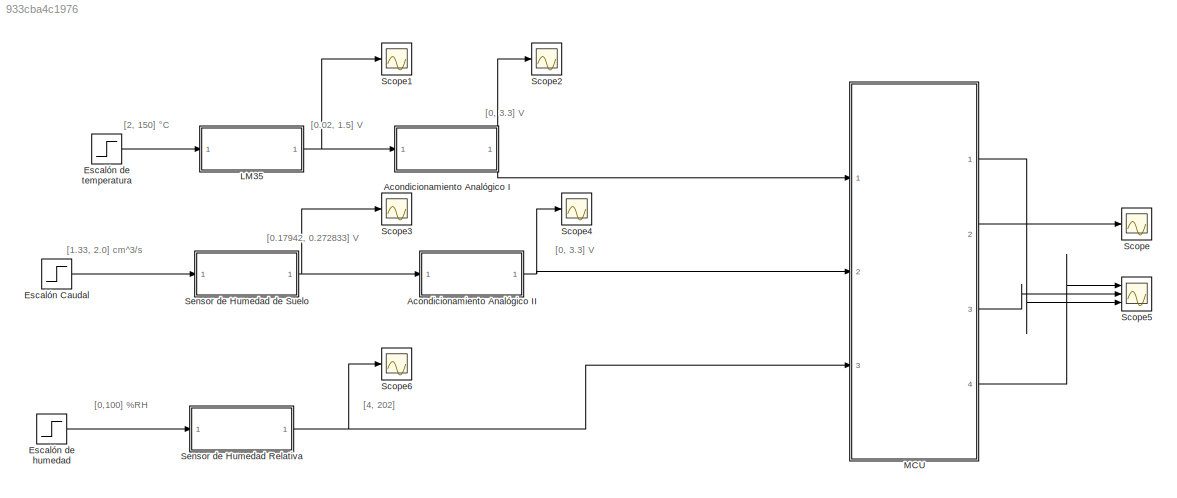
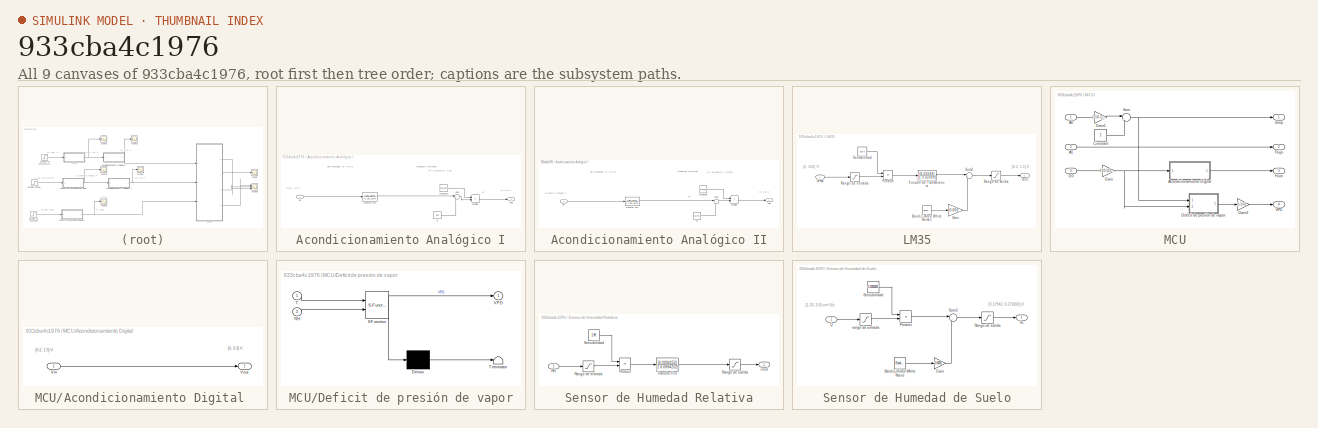
[diagram: thumbnail index - all 9 canvases of the model, root first then tree order]
MODEL slx_933cba4c1976
KIND model
CONFIG AbsTol = auto
CONFIG EnableMultiTasking = off
CONFIG FixedStep = 1e-3
CONFIG MaxStep = auto
CONFIG MinStep = auto
CONFIG RelTol = 1e-3
CONFIG SampleTimeConstraint = Unconstrained
CONFIG Solver = VariableStepAuto
CONFIG SolverName = VariableStepAuto
CONFIG StartTime = 0.0
CONFIG StopTime = 480
BLOCK [SubSystem] Acondicionamiento Analógico I
  Description = Temperature Sensor
  Ports = [1, 1]
  RequestExecContextInheritance = off
  Tag = LM35
BLOCK [Constant] Acondicionamiento Analógico I/Ganancia 
  Value = 2.22972973
BLOCK [Product] Acondicionamiento Analógico I/Multiply
  InputSameDT = off
  OutDataTypeStr = Inherit: Inherit via internal rule
  Ports = [2, 1]
  RndMeth = Floor
  SaturateOnIntegerOverflow = off
BLOCK [Sum] Acondicionamiento Analógico I/Sum
  IconShape = round
  InputSameDT = off
  Inputs = |+-
  OutDataTypeStr = Inherit: Inherit via internal rule
  Ports = [2, 1]
  SaturateOnIntegerOverflow = off
BLOCK [TransferFcn] Acondicionamiento Analógico I/Transfer Fcn
  Denominator = [1 251.3274]
  Numerator = [251.3274]
BLOCK [Constant] Acondicionamiento Analógico I/V1
  Value = 0.02
BLOCK [Inport] Acondicionamiento Analógico I/Vin 
  IconDisplay = Port number
BLOCK [Outport] Acondicionamiento Analógico I/Vout 
  IconDisplay = Port number
BLOCK [SubSystem] Acondicionamiento Analógico II
  Description = Temperature Sensor
  Ports = [1, 1]
  RequestExecContextInheritance = off
  Tag = LM35
BLOCK [Constant] Acondicionamiento Analógico II/Ganancia 
  Value = 33.36366
BLOCK [Product] Acondicionamiento Analógico II/Multiply
  InputSameDT = off
  OutDataTypeStr = Inherit: Inherit via internal rule
  Ports = [2, 1]
  RndMeth = Floor
  SaturateOnIntegerOverflow = off
BLOCK [Sum] Acondicionamiento Analógico II/Sum
  IconShape = round
  InputSameDT = off
  Inputs = |+-
  OutDataTypeStr = Inherit: Inherit via internal rule
  Ports = [2, 1]
  SaturateOnIntegerOverflow = off
BLOCK [TransferFcn] Acondicionamiento Analógico II/Transfer Fcn
  Denominator = [1 251.3274]
  Numerator = [251.3274]
BLOCK [Constant] Acondicionamiento Analógico II/V1
  Value = 0.17942
BLOCK [Inport] Acondicionamiento Analógico II/Vin 
  IconDisplay = Port number
BLOCK [Outport] Acondicionamiento Analógico II/Vout 
  IconDisplay = Port number
BLOCK [Step] Escalón Caudal
  After = 2.0
  SampleTime = 0
BLOCK [Step] Escalón de humedad 
  After = 70
  SampleTime = 0
BLOCK [Step] Escalón de temperatura
  After = 25
  Before = 2
  SampleTime = 0
BLOCK [SubSystem] LM35
  Description = Temperature Sensor
  Ports = [1, 1]
  RequestExecContextInheritance = off
  Tag = LM35
BLOCK [Reference] LM35/Band-Limited White Noise1  REF=simulink/Sources/Band-Limited
White Noise
  Ports = [0, 1]
  SourceBlock = simulink/Sources/Band-Limited\nWhite Noise
  SourceProductBaseCode = SL
  SourceProductName = Simulink
  SourceType = Band-Limited White Noise.
BLOCK [TransferFcn] LM35/Función de Transferencia
  Denominator = [1 0.02049]
  Numerator = [0.02049]
BLOCK [Gain] LM35/Gain
  Gain = 0.001
  OutDataTypeStr = Inherit: Inherit via internal rule
  ParamDataTypeStr = Inherit: Inherit via internal rule
  SaturateOnIntegerOverflow = off
BLOCK [Product] LM35/Product
  InputSameDT = off
  OutDataTypeStr = Inherit: Inherit via internal rule
  Ports = [2, 1]
  RndMeth = Floor
  SaturateOnIntegerOverflow = off
BLOCK [Saturate] LM35/Rango de entrada
  InputPortMap = u0
  LowerLimit = 2
  Ports = [1, 1]
  UpperLimit = 150
BLOCK [Saturate] LM35/Rango de salida
  InputPortMap = u0
  LowerLimit = 0.2
  Ports = [1, 1]
  UpperLimit = 1.5
BLOCK [Constant] LM35/Sensibilidad
  Value = 10e-3
BLOCK [Sum] LM35/Sum2
  IconShape = round
  InputSameDT = off
  Inputs = |++
  OutDataTypeStr = Inherit: Inherit via internal rule
  Ports = [2, 1]
  SaturateOnIntegerOverflow = off
BLOCK [Inport] LM35/temp 
  IconDisplay = Port number
BLOCK [Outport] LM35/vout 
  IconDisplay = Port number
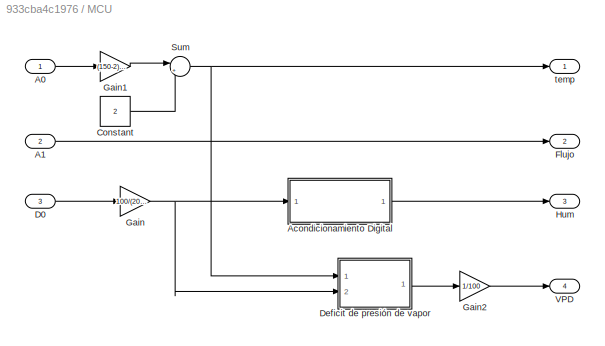
BLOCK [SubSystem] MCU
  Description = Temperature Sensor
  Ports = [3, 4]
  RequestExecContextInheritance = off
  Tag = LM35
BLOCK [Inport] MCU/A0 
  IconDisplay = Port number
BLOCK [Inport] MCU/A1 
  IconDisplay = Port number
  Port = 2
BLOCK [SubSystem] MCU/Acondicionamiento Digital 
  Description = Temperature Sensor
  Ports = [1, 1]
  RequestExecContextInheritance = off
  Tag = LM35
BLOCK [Inport] MCU/Acondicionamiento Digital /Vin 
  IconDisplay = Port number
BLOCK [Outport] MCU/Acondicionamiento Digital /Vout 
  IconDisplay = Port number
BLOCK [Constant] MCU/Constant
  Value = 2
BLOCK [Inport] MCU/D0 
  IconDisplay = Port number
  Port = 3
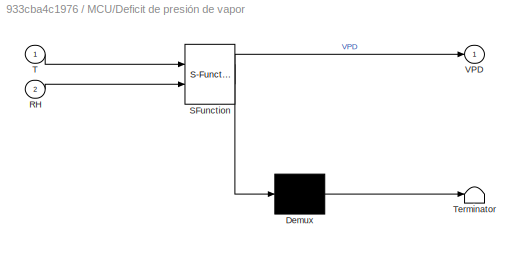
BLOCK [SubSystem] MCU/Deficit de presión de vapor
  ErrorFcn = Stateflow.Translate.translate
  PermitHierarchicalResolution = ExplicitOnly
  Ports = [2, 1]
  RequestExecContextInheritance = off
  SFBlockType = MATLAB Function
  TreatAsAtomicUnit = on
BLOCK [Demux] MCU/Deficit de presión de vapor/ Demux 
  Outputs = 1
  Ports = [1, 1]
BLOCK [S-Function] MCU/Deficit de presión de vapor/ SFunction 
  EnableBusSupport = on
  FunctionName = sf_sfun
  PortCounts = [2 2]
  Ports = [2, 2]
  SFcnIsStateOwnerBlock = off
  SFunctionDeploymentMode = off
  Tag = Stateflow S-Function sensors 2
BLOCK [Terminator] MCU/Deficit de presión de vapor/ Terminator 
BLOCK [Inport] MCU/Deficit de presión de vapor/RH
  IconDisplay = Port number
  Port = 2
BLOCK [Inport] MCU/Deficit de presión de vapor/T
  IconDisplay = Port number
BLOCK [Outport] MCU/Deficit de presión de vapor/VPD
  IconDisplay = Port number
BLOCK [Outport] MCU/Flujo
  IconDisplay = Port number
  Port = 2
BLOCK [Gain] MCU/Gain
  Gain = 100/(202-4)
  OutDataTypeStr = Inherit: Inherit via internal rule
  ParamDataTypeStr = Inherit: Inherit via internal rule
  SaturateOnIntegerOverflow = off
BLOCK [Gain] MCU/Gain1
  Gain = (150-2)/3.3
  OutDataTypeStr = Inherit: Inherit via internal rule
  ParamDataTypeStr = Inherit: Inherit via internal rule
  SaturateOnIntegerOverflow = off
BLOCK [Gain] MCU/Gain2
  Gain = 1/100
  OutDataTypeStr = Inherit: Inherit via internal rule
  ParamDataTypeStr = Inherit: Inherit via internal rule
  SaturateOnIntegerOverflow = off
BLOCK [Outport] MCU/Hum 
  IconDisplay = Port number
  Port = 3
BLOCK [Sum] MCU/Sum
  IconShape = round
  InputSameDT = off
  Inputs = |++
  OutDataTypeStr = Inherit: Inherit via internal rule
  Ports = [2, 1]
  SaturateOnIntegerOverflow = off
BLOCK [Outport] MCU/VPD
  IconDisplay = Port number
  Port = 4
BLOCK [Outport] MCU/temp 
  IconDisplay = Port number
BLOCK [Scope] Scope
  Floating = off
  NumInputPorts = 1
  Ports = [1]
  ScopeSpecificationString = Simulink.scopes.TimeScopeBlockCfg('CurrentConfiguration', extmgr.ConfigurationSet(extmgr.Configuration('Core','General UI',true),extmgr.Configuration('Core','Source UI',true),extmgr.Configuration('Sources','WiredSimulink',true,'DataLoggingVariableName','ScopeData1'),extmgr.Configuration('Visuals','Time Domain',true),extmgr.Configuration('Tools','Plot Navigation',true),extmgr.Configuration('Tools',...<+40ch>
BLOCK [Scope] Scope1
  Floating = off
  NumInputPorts = 1
  Ports = [1]
  ScopeSpecificationString = Simulink.scopes.TimeScopeBlockCfg('CurrentConfiguration', extmgr.ConfigurationSet(extmgr.Configuration('Core','General UI',true),extmgr.Configuration('Core','Source UI',true),extmgr.Configuration('Sources','WiredSimulink',true,'DataLoggingVariableName','ScopeData2'),extmgr.Configuration('Visuals','Time Domain',true,'SerializedDisplays',{struct('MinYLimReal','0.19342','MaxYLimReal','0.25919','YLabe...<+1388ch>
BLOCK [Scope] Scope2
  Floating = off
  NumInputPorts = 1
  Ports = [1]
  ScopeSpecificationString = Simulink.scopes.TimeScopeBlockCfg('CurrentConfiguration', extmgr.ConfigurationSet(extmgr.Configuration('Core','General UI',true),extmgr.Configuration('Core','Source UI',true),extmgr.Configuration('Sources','WiredSimulink',true,'DataLoggingVariableName','ScopeData3'),extmgr.Configuration('Visuals','Time Domain',true,'SerializedDisplays',{struct('MinYLimReal','0.19342','MaxYLimReal','0.25919','YLabe...<+1384ch>
BLOCK [Scope] Scope3
  Floating = off
  NumInputPorts = 1
  Ports = [1]
  ScopeSpecificationString = Simulink.scopes.TimeScopeBlockCfg('CurrentConfiguration', extmgr.ConfigurationSet(extmgr.Configuration('Core','General UI',true),extmgr.Configuration('Core','Source UI',true),extmgr.Configuration('Sources','WiredSimulink',true,'DataLoggingVariableName','ScopeData1'),extmgr.Configuration('Visuals','Time Domain',true,'SerializedDisplays',{struct('MinYLimReal','0.17845','MaxYLimReal','0.27504','YLabe...<+1429ch>
BLOCK [Scope] Scope4
  Floating = off
  NumInputPorts = 1
  Ports = [1]
  ScopeSpecificationString = Simulink.scopes.TimeScopeBlockCfg('CurrentConfiguration', extmgr.ConfigurationSet(extmgr.Configuration('Core','General UI',true),extmgr.Configuration('Core','Source UI',true),extmgr.Configuration('Sources','WiredSimulink',true,'DataLoggingVariableName','ScopeData2'),extmgr.Configuration('Visuals','Time Domain',true,'SerializedDisplays',{struct('MinYLimReal','-0.05921','MaxYLimReal','3.28641','YLab...<+1435ch>
BLOCK [Scope] Scope5
  Floating = off
  NumInputPorts = 3
  Ports = [3]
  ScopeSpecificationString = Simulink.scopes.TimeScopeBlockCfg('CurrentConfiguration', extmgr.ConfigurationSet(extmgr.Configuration('Core','General UI',true),extmgr.Configuration('Core','Source UI',true),extmgr.Configuration('Sources','WiredSimulink',true,'DataLoggingVariableName','ScopeData1'),extmgr.Configuration('Visuals','Time Domain',true,'SerializedDisplays',{struct('MinYLimReal','-8.75','MaxYLimReal','78.75','YLabelRea...<+1437ch>
BLOCK [Scope] Scope6
  Floating = off
  NumInputPorts = 1
  Ports = [1]
  ScopeSpecificationString = Simulink.scopes.TimeScopeBlockCfg('CurrentConfiguration', extmgr.ConfigurationSet(extmgr.Configuration('Core','General UI',true),extmgr.Configuration('Core','Source UI',true),extmgr.Configuration('Sources','WiredSimulink',true,'DataLoggingVariableName','ScopeData3'),extmgr.Configuration('Visuals','Time Domain',true,'SerializedDisplays',{struct('MinYLimReal','-17.325','MaxYLimReal','155.925','YLabe...<+1509ch>
BLOCK [SubSystem] Sensor de Humedad Relativa
  Description = Temperature Sensor
  Ports = [1, 1]
  RequestExecContextInheritance = off
  Tag = LM35
BLOCK [Product] Sensor de Humedad Relativa/Product
  InputSameDT = off
  OutDataTypeStr = Inherit: Inherit via internal rule
  Ports = [2, 1]
  RndMeth = Floor
  SaturateOnIntegerOverflow = off
BLOCK [Inport] Sensor de Humedad Relativa/RH 
  IconDisplay = Port number
BLOCK [Saturate] Sensor de Humedad Relativa/Rango de entrada
  InputPortMap = u0
  LowerLimit = 0
  Ports = [1, 1]
  UpperLimit = 100
BLOCK [Saturate] Sensor de Humedad Relativa/Rango de salida
  InputPortMap = u0
  LowerLimit = 0
  Ports = [1, 1]
  UpperLimit = 255
BLOCK [Constant] Sensor de Humedad Relativa/Sensibilidad
  Value = 1.98
BLOCK [TransferFcn] Sensor de Humedad Relativa/Transfer Fcn
  Denominator = [1 0.0994252]
  Numerator = [0.0994252]
BLOCK [Outport] Sensor de Humedad Relativa/vout 
  IconDisplay = Port number
BLOCK [SubSystem] Sensor de Humedad de Suelo
  Description = Temperature Sensor
  Ports = [1, 1]
  RequestExecContextInheritance = off
  Tag = LM35
BLOCK [Reference] Sensor de Humedad de Suelo/Band-Limited White Noise  REF=simulink/Sources/Band-Limited
White Noise
  Ports = [0, 1]
  SourceBlock = simulink/Sources/Band-Limited\nWhite Noise
  SourceProductBaseCode = SL
  SourceProductName = Simulink
  SourceType = Band-Limited White Noise.
BLOCK [Gain] Sensor de Humedad de Suelo/Gain
  Gain = 0.00001
  OutDataTypeStr = Inherit: Inherit via internal rule
  ParamDataTypeStr = Inherit: Inherit via internal rule
  SaturateOnIntegerOverflow = off
BLOCK [Product] Sensor de Humedad de Suelo/Product
  InputSameDT = off
  OutDataTypeStr = Inherit: Inherit via internal rule
  Ports = [2, 1]
  RndMeth = Floor
  SaturateOnIntegerOverflow = off
BLOCK [Inport] Sensor de Humedad de Suelo/Q 
  IconDisplay = Port number
BLOCK [Saturate] Sensor de Humedad de Suelo/Rango de salida
  InputPortMap = u0
  LowerLimit = 0.16
  Ports = [1, 1]
  UpperLimit = 0.28
BLOCK [Constant] Sensor de Humedad de Suelo/Sensibilidad
  Value = 0.13565823
BLOCK [Sum] Sensor de Humedad de Suelo/Sum2
  IconShape = round
  InputSameDT = off
  Inputs = |++
  OutDataTypeStr = Inherit: Inherit via internal rule
  Ports = [2, 1]
  SaturateOnIntegerOverflow = off
BLOCK [Outport] Sensor de Humedad de Suelo/Vc 
  IconDisplay = Port number
BLOCK [Saturate] Sensor de Humedad de Suelo/rango de entrada
  InputPortMap = u0
  LowerLimit = 1.32
  Ports = [1, 1]
  UpperLimit = 2.0
ANNOTATION (root): [0, 3.3] V
ANNOTATION (root): [0,100] %RH
ANNOTATION (root): [0.02, 1.5] V
ANNOTATION (root): [0.17942, 0.272833] V
ANNOTATION (root): [1.33, 2.0] cm^3/s
ANNOTATION (root): [2, 150] °C
ANNOTATION (root): [4, 202]
ANNOTATION Acondicionamiento Analógico I: Vo = 2.229729(V2 - 0.02)
ANNOTATION Acondicionamiento Analógico I: Amplificador Diferencial
ANNOTATION Acondicionamiento Analógico I: Filtro Pasabajas, Fc = 40 Hz
ANNOTATION Acondicionamiento Analógico I: V2
ANNOTATION Acondicionamiento Analógico I: [0, 3.3] V
ANNOTATION Acondicionamiento Analógico I: [0.02, 1.5] V
ANNOTATION Acondicionamiento Analógico II: Vo = 35.3269(V2 - 0.17942)
ANNOTATION Acondicionamiento Analógico II: Amplificador Diferencial
ANNOTATION Acondicionamiento Analógico II: Filtro Pasabajas, Fc = 40 Hz
ANNOTATION Acondicionamiento Analógico II: V2
ANNOTATION Acondicionamiento Analógico II: [0, 3.3] V
ANNOTATION Acondicionamiento Analógico II: [0.17942, 0.272833] V
ANNOTATION LM35: [0.2, 1.5] V
ANNOTATION LM35: [2, 150] °C
ANNOTATION MCU/Acondicionamiento Digital : [0, 3.3] V
ANNOTATION MCU/Acondicionamiento Digital : [0.2, 1.5] V
ANNOTATION Sensor de Humedad de Suelo: [0.17942, 0.272833] V
ANNOTATION Sensor de Humedad de Suelo: [1.33, 2.0] cm^3/s
LINE Acondicionamiento Analógico I/Ganancia :1 -> Acondicionamiento Analógico I/Multiply:1
LINE Acondicionamiento Analógico I/Multiply:1 -> Acondicionamiento Analógico I/Vout :1
LINE Acondicionamiento Analógico I/Sum:1 -> Acondicionamiento Analógico I/Multiply:2
LINE Acondicionamiento Analógico I/Transfer Fcn:1 -> Acondicionamiento Analógico I/Sum:1
LINE Acondicionamiento Analógico I/V1:1 -> Acondicionamiento Analógico I/Sum:2
LINE Acondicionamiento Analógico I/Vin :1 -> Acondicionamiento Analógico I/Transfer Fcn:1
NET Acondicionamiento Analógico I:1 -> MCU:1, Scope2:1
LINE Acondicionamiento Analógico II/Ganancia :1 -> Acondicionamiento Analógico II/Multiply:1
LINE Acondicionamiento Analógico II/Multiply:1 -> Acondicionamiento Analógico II/Vout :1
LINE Acondicionamiento Analógico II/Sum:1 -> Acondicionamiento Analógico II/Multiply:2
LINE Acondicionamiento Analógico II/Transfer Fcn:1 -> Acondicionamiento Analógico II/Sum:1
LINE Acondicionamiento Analógico II/V1:1 -> Acondicionamiento Analógico II/Sum:2
LINE Acondicionamiento Analógico II/Vin :1 -> Acondicionamiento Analógico II/Transfer Fcn:1
NET Acondicionamiento Analógico II:1 -> MCU:2, Scope4:1
LINE Escalón Caudal:1 -> Sensor de Humedad de Suelo:1
LINE Escalón de humedad :1 -> Sensor de Humedad Relativa:1
LINE Escalón de temperatura:1 -> LM35:1
LINE LM35/Band-Limited White Noise1:1 -> LM35/Gain:1
LINE LM35/Función de Transferencia:1 -> LM35/Sum2:1
LINE LM35/Gain:1 -> LM35/Sum2:2
LINE LM35/Product:1 -> LM35/Función de Transferencia:1
LINE LM35/Rango de entrada:1 -> LM35/Product:2
LINE LM35/Rango de salida:1 -> LM35/vout :1
LINE LM35/Sensibilidad:1 -> LM35/Product:1
LINE LM35/Sum2:1 -> LM35/Rango de salida:1
LINE LM35/temp :1 -> LM35/Rango de entrada:1
NET LM35:1 -> Acondicionamiento Analógico I:1, Scope1:1
LINE MCU/A0 :1 -> MCU/Gain1:1
LINE MCU/A1 :1 -> MCU/Flujo:1
LINE MCU/Acondicionamiento Digital /Vin :1 -> MCU/Acondicionamiento Digital /Vout :1
LINE MCU/Acondicionamiento Digital :1 -> MCU/Hum :1
LINE MCU/Constant:1 -> MCU/Sum:2
LINE MCU/D0 :1 -> MCU/Gain:1
LINE MCU/Deficit de presión de vapor:1 -> MCU/Gain2:1
LINE MCU/Gain1:1 -> MCU/Sum:1
LINE MCU/Gain2:1 -> MCU/VPD:1
NET MCU/Gain:1 -> MCU/Acondicionamiento Digital :1, MCU/Deficit de presión de vapor:2
NET MCU/Sum:1 -> MCU/Deficit de presión de vapor:1, MCU/temp :1
LINE MCU:1 -> Scope5:3
LINE MCU:2 -> Scope:1
LINE MCU:3 -> Scope5:2
LINE MCU:4 -> Scope5:1
LINE Sensor de Humedad Relativa/Product:1 -> Sensor de Humedad Relativa/Transfer Fcn:1
LINE Sensor de Humedad Relativa/RH :1 -> Sensor de Humedad Relativa/Rango de entrada:1
LINE Sensor de Humedad Relativa/Rango de entrada:1 -> Sensor de Humedad Relativa/Product:2
LINE Sensor de Humedad Relativa/Rango de salida:1 -> Sensor de Humedad Relativa/vout :1
LINE Sensor de Humedad Relativa/Sensibilidad:1 -> Sensor de Humedad Relativa/Product:1
LINE Sensor de Humedad Relativa/Transfer Fcn:1 -> Sensor de Humedad Relativa/Rango de salida:1
NET Sensor de Humedad Relativa:1 -> MCU:3, Scope6:1
LINE Sensor de Humedad de Suelo/Band-Limited White Noise:1 -> Sensor de Humedad de Suelo/Gain:1
LINE Sensor de Humedad de Suelo/Gain:1 -> Sensor de Humedad de Suelo/Sum2:2
LINE Sensor de Humedad de Suelo/Product:1 -> Sensor de Humedad de Suelo/Sum2:1
LINE Sensor de Humedad de Suelo/Q :1 -> Sensor de Humedad de Suelo/rango de entrada:1
LINE Sensor de Humedad de Suelo/Rango de salida:1 -> Sensor de Humedad de Suelo/Vc :1
LINE Sensor de Humedad de Suelo/Sensibilidad:1 -> Sensor de Humedad de Suelo/Product:1
LINE Sensor de Humedad de Suelo/Sum2:1 -> Sensor de Humedad de Suelo/Rango de salida:1
LINE Sensor de Humedad de Suelo/rango de entrada:1 -> Sensor de Humedad de Suelo/Product:2
NET Sensor de Humedad de Suelo:1 -> Acondicionamiento Analógico II:1, Scope3:1
note: NET lines group one-source signal fan-out (src -> all destinations, sorted); 1:1 wires keep LINE
CHART MCU/Deficit de 
presión de vapor states=1 transitions=1
  STATE_LABEL 'eML_blk_kernel()'
  STATE_LABEL 'SCRIPT:\nfunction VPD = fcn(T,RH)\n\nVPD = exp(6.41+(0.0727*T)-(3e-4*(T^2))+(1.18e-6*(T^3))-(3.86e-9*(T^4)))*(1-(RH/100));\n'
